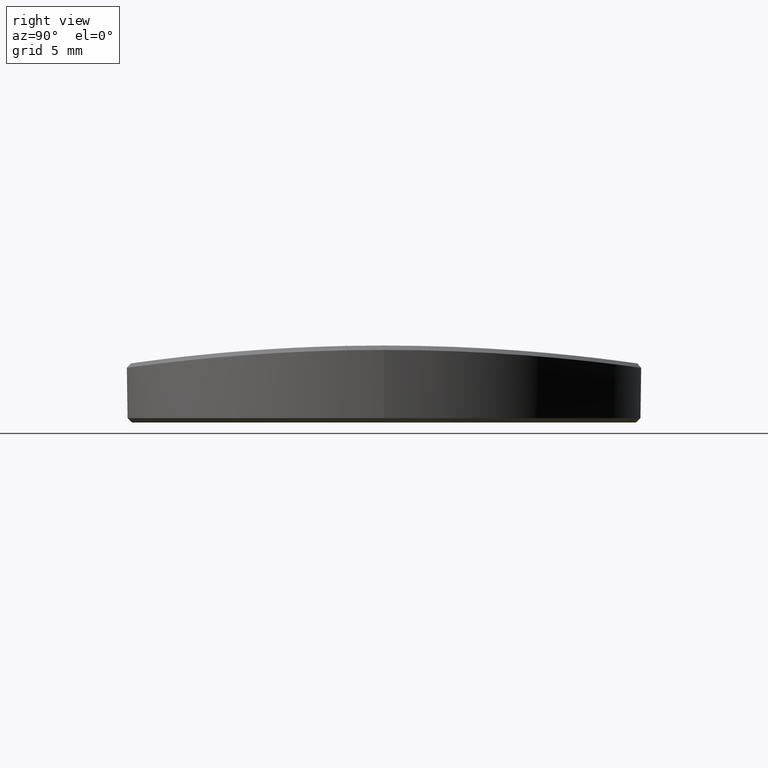
[diagram: clean part render]
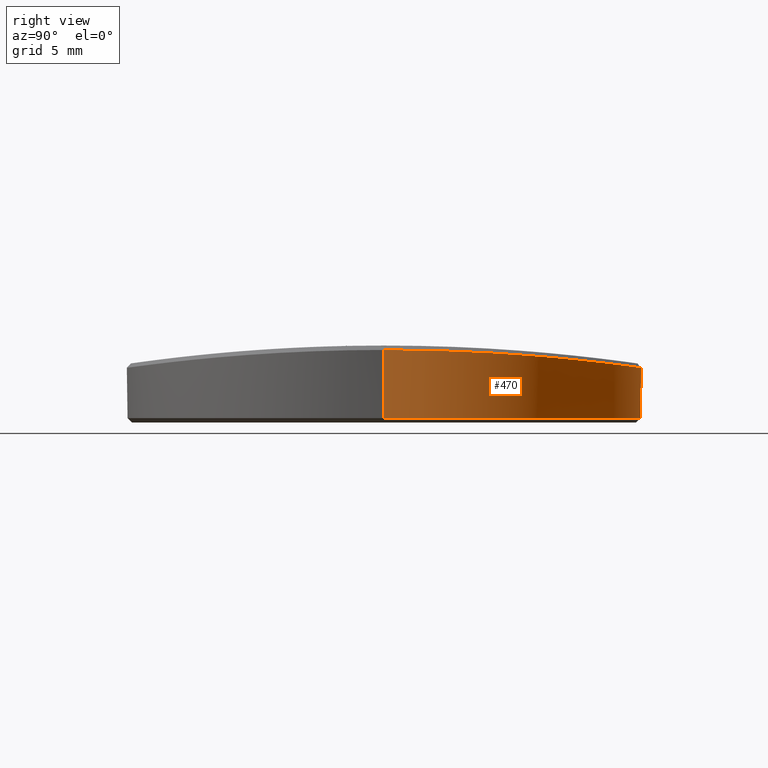
[diagram: same view with one face highlighted and labeled with its STEP entity id]
A machine part, right view. The second image highlights one B-rep face of the part: STEP entity #470.
In plain terms, the highlighted cylindrical surface (partial cylindrical patch) has radius 11.7 mm, axis along (-0, -0, -1).
Its self-contained STEP definition (entity closure, byte-faithful):
#8 = CARTESIAN_POINT ( 'NONE',  ( 9.423466550783288653, 6.934582250744128373, 3.014997046267250624 ) ) ;
#12 = CARTESIAN_POINT ( 'NONE',  ( -6.934881590996047507, 9.423246402945569145, 2.773191987632987132 ) ) ;
#29 = CARTESIAN_POINT ( 'NONE',  ( 11.28808333336720970, 3.079837177515823754, 3.243718037676820209 ) ) ;
#32 = CARTESIAN_POINT ( 'NONE',  ( -8.120234267055250754, 8.423625073570237376, 2.879266567109408204 ) ) ;
#46 = CARTESIAN_POINT ( 'NONE',  ( -7.790204086379394433, 8.729484045747740950, 2.848076022502154636 ) ) ;
#59 = CARTESIAN_POINT ( 'NONE',  ( -3.582919657623313103, 11.13944111959476935, 2.563011619880523284 ) ) ;
#72 = CARTESIAN_POINT ( 'NONE',  ( -5.496578909101371480, 10.32851043646403078, 2.666757156664107065 ) ) ;
#85 = CARTESIAN_POINT ( 'NONE',  ( -1.337711749418160956, 11.62482199064237776, 2.497069820087239211 ) ) ;
#100 = CARTESIAN_POINT ( 'NONE',  ( -6.431031885545754889, 9.774096074572968362, 2.733117620759950128 ) ) ;
#128 = CARTESIAN_POINT ( 'NONE',  ( 8.355403552951450763, 8.190122313584293323, 2.902292401856165771 ) ) ;
#131 = CARTESIAN_POINT ( 'NONE',  ( -10.67904687984067280, 4.781552069969376539, 3.164543701788722796 ) ) ;
#141 = CARTESIAN_POINT ( 'NONE',  ( 5.557007384699456765, 10.29610583020572356, 2.670737566699660892 ) ) ;
#146 = VECTOR ( 'NONE', #1243, 1000.000000000000000 ) ;
#153 = CARTESIAN_POINT ( 'NONE',  ( 5.796661032644483846, 10.16383934591849325, 2.686879312257353991 ) ) ;
#155 = CARTESIAN_POINT ( 'NONE',  ( -11.16868290659732743, 3.486079054597477800, 3.227864790186482313 ) ) ;
#165 = CARTESIAN_POINT ( 'NONE',  ( 7.475799714176662114, 9.000180611077421844, 2.819546441067651177 ) ) ;
#167 = CARTESIAN_POINT ( 'NONE',  ( -10.74414991198151803, 4.632169281395521310, 3.172812873765554986 ) ) ;
#179 = CARTESIAN_POINT ( 'NONE',  ( 6.768288103610924367, 9.544423485426866804, 2.759549672480526628 ) ) ;
#189 = CARTESIAN_POINT ( 'NONE',  ( 10.47289090876417994, 5.217801390915133730, 3.138718563851202514 ) ) ;
#190 = CARTESIAN_POINT ( 'NONE',  ( -7.848453221490137466, 8.677084356806657794, 2.853493259761380241 ) ) ;
#200 = CARTESIAN_POINT ( 'NONE',  ( 9.058353588421136138, 7.405159564314372389, 2.974965108759346943 ) ) ;
#204 = CARTESIAN_POINT ( 'NONE',  ( -7.841116831944908938, 8.683718255666667218, 2.852809013293279961 ) ) ;
#213 = CARTESIAN_POINT ( 'NONE',  ( 8.676743474769089914, 7.848832130868982127, 2.934795349039413193 ) ) ;
#216 = CARTESIAN_POINT ( 'NONE',  ( -8.661088741182386030, 7.866101081746550427, 2.933184051447837781 ) ) ;
#226 = CARTESIAN_POINT ( 'NONE',  ( 8.988207846977292803, 7.490621123748704591, 2.967436274016963971 ) ) ;
#229 = CARTESIAN_POINT ( 'NONE',  ( -8.656823624091387614, 7.870796423134953201, 2.932745429501128598 ) ) ;
#237 = CARTESIAN_POINT ( 'NONE',  ( 10.62198045870282748, 4.912097306269226138, 3.157288707685147688 ) ) ;
#241 = CARTESIAN_POINT ( 'NONE',  ( -8.838308855851572332, 7.667471396299688102, 2.951553142311600819 ) ) ;
#254 = CARTESIAN_POINT ( 'NONE',  ( -3.311605327344831817, 11.22158043972328834, 2.552039130861377014 ) ) ;
#283 = CARTESIAN_POINT ( 'NONE',  ( -4.324336184270618944, 10.87171867893543897, 2.598135972374700842 ) ) ;
#299 = CARTESIAN_POINT ( 'NONE',  ( 2.468828876874232137, 11.43665596899067971, 2.522966208314358472 ) ) ;
#315 = CARTESIAN_POINT ( 'NONE',  ( -6.085178776723663141, 9.993489790850242471, 2.707319686708413720 ) ) ;
#321 = VERTEX_POINT ( 'NONE', #1889 ) ;
#324 = CARTESIAN_POINT ( 'NONE',  ( 8.095396090477708029, 8.447710135712037882, 2.876863130047841999 ) ) ;
#327 = CARTESIAN_POINT ( 'NONE',  ( -11.69999999999999929, 0.000000000000000000, 3.299711432255976185 ) ) ;
#338 = CARTESIAN_POINT ( 'NONE',  ( 4.623643885365336104, 10.74782390521994380, 2.614102858593107648 ) ) ;
#351 = CARTESIAN_POINT ( 'NONE',  ( 6.976823608922873454, 9.392235483002231433, 2.776662898541364832 ) ) ;
#353 = CARTESIAN_POINT ( 'NONE',  ( -10.62007743323034070, 4.910505967701833008, 3.157111466462679150 ) ) ;
#363 = CARTESIAN_POINT ( 'NONE',  ( 7.450724081023547107, 9.020910510720485220, 2.817323503001227802 ) ) ;
#365 = DIRECTION ( 'NONE',  ( -1.000000000000000000, 0.000000000000000000, 0.000000000000000000 ) ) ;
#374 = CARTESIAN_POINT ( 'NONE',  ( 5.528467339751951037, 10.31145991549457186, 2.668852876344127267 ) ) ;
#376 = CARTESIAN_POINT ( 'NONE',  ( -11.25268642968377009, 3.210127015008774176, 3.238988517216529139 ) ) ;
#377 = LINE ( 'NONE', #1144, #1668 ) ;
#386 = CARTESIAN_POINT ( 'NONE',  ( 10.39432843700371834, 5.371427792267426504, 3.129025969215451397 ) ) ;
#388 = CARTESIAN_POINT ( 'NONE',  ( -7.491168183058967145, 8.987742304217336553, 2.820891582836016820 ) ) ;
#401 = CARTESIAN_POINT ( 'NONE',  ( 10.81611117540400535, 4.461196338489997082, 3.182000176748348341 ) ) ;
#402 = CARTESIAN_POINT ( 'NONE',  ( -9.015223535563711366, 7.457604350042461583, 2.970339419094927713 ) ) ;
#410 = CARTESIAN_POINT ( 'NONE',  ( 10.84436250118830181, 4.392083582961825883, 3.185621824939246061 ) ) ;
#413 = CARTESIAN_POINT ( 'NONE',  ( -9.029058120947217603, 7.440848573013114198, 2.971820874427476777 ) ) ;
#422 = CARTESIAN_POINT ( 'NONE',  ( 11.20722010062317864, 3.360115683973921907, 3.232965936025506082 ) ) ;
#424 = CARTESIAN_POINT ( 'NONE',  ( -8.625495655252160887, 7.905150689315621371, 2.929528927607870870 ) ) ;
#433 = CARTESIAN_POINT ( 'NONE',  ( 11.50932266270777404, 2.104243587441659624, 3.273550169094619378 ) ) ;
#435 = CARTESIAN_POINT ( 'NONE',  ( -8.994283184727965619, 7.482894975307424090, 2.968099537626058826 ) ) ;
#437 = LINE ( 'NONE', #2058, #146 ) ;
#447 = CARTESIAN_POINT ( 'NONE',  ( -4.392152916655184924, 10.84433442219547139, 2.601677737078109232 ) ) ;
#456 = ORIENTED_EDGE ( 'NONE', *, *, #2287, .T. ) ;
#463 = CARTESIAN_POINT ( 'NONE',  ( -2.095613579457322739, 11.51119752531552365, 2.512759529599827957 ) ) ;
#470 = ADVANCED_FACE ( 'NONE', ( #1912 ), #988, .T. ) ;
#478 = CARTESIAN_POINT ( 'NONE',  ( 1.522781634743607837, 11.60207571883033495, 2.500227536869347400 ) ) ;
#487 = VERTEX_POINT ( 'NONE', #778 ) ;
#492 = CARTESIAN_POINT ( 'NONE',  ( -5.211233301710781696, 10.47614687420152180, 2.648481863732226049 ) ) ;
#506 = CARTESIAN_POINT ( 'NONE',  ( 1.334777704807919241, 11.62520664857412811, 2.497016128364430987 ) ) ;
#517 = CARTESIAN_POINT ( 'NONE',  ( 7.990451248843819521, 8.546636761880874289, 2.866854406976475200 ) ) ;
#533 = CARTESIAN_POINT ( 'NONE',  ( 4.516641084779545956, 10.79307609056330541, 2.608288902651102692 ) ) ;
#534 = CARTESIAN_POINT ( 'NONE',  ( -10.09257721807098385, 5.919372284315842947, 3.092391209321452283 ) ) ;
#543 = CARTESIAN_POINT ( 'NONE',  ( 7.659438855010386682, 8.845264139293899319, 2.836020008356208599 ) ) ;
#545 = CARTESIAN_POINT ( 'NONE',  ( -11.39562051646670504, 2.653077861295151774, 3.258148116783672776 ) ) ;
#556 = CARTESIAN_POINT ( 'NONE',  ( 4.292606044357717643, 10.88586470433403086, 2.596331278904784767 ) ) ;
#571 = CARTESIAN_POINT ( 'NONE',  ( 4.559406541687865300, 10.77508005413518433, 2.610602714872159780 ) ) ;
#572 = CARTESIAN_POINT ( 'NONE',  ( -10.30619530600928435, 5.538272715550768055, 3.118225804023168291 ) ) ;
#582 = CARTESIAN_POINT ( 'NONE',  ( 9.152262765054185678, 7.289055387227012517, 2.985102498484895506 ) ) ;
#585 = CARTESIAN_POINT ( 'NONE',  ( 0.000000000000000000, 0.000000000000000000, 0.2000000000000005107 ) ) ;
#594 = CARTESIAN_POINT ( 'NONE',  ( 8.568059341121223582, 7.967910334247390480, 2.923639158911551128 ) ) ;
#597 = CARTESIAN_POINT ( 'NONE',  ( -9.301898221341586392, 7.097074807426446696, 3.001486397761464975 ) ) ;
#598 = DIRECTION ( 'NONE',  ( -0.000000000000000000, -0.000000000000000000, -1.000000000000000000 ) ) ;
#609 = CARTESIAN_POINT ( 'NONE',  ( 10.13712715543801934, 5.845097038816791546, 3.097688791261012931 ) ) ;
#611 = CARTESIAN_POINT ( 'NONE',  ( -9.350632590962717927, 7.032537705108548032, 3.006884969986363565 ) ) ;
#617 = EDGE_CURVE ( 'NONE', #699, #2062, #1368, .T. ) ;
#621 = CARTESIAN_POINT ( 'NONE',  ( 10.33653362354998784, 5.481443991762954049, 3.121935311930414958 ) ) ;
#624 = CARTESIAN_POINT ( 'NONE',  ( -9.390733326201626596, 6.978845470846147592, 3.011344437636261251 ) ) ;
#634 = CARTESIAN_POINT ( 'NONE',  ( 9.097931221171149829, 7.356543930396582276, 2.979226690039008307 ) ) ;
#636 = CARTESIAN_POINT ( 'NONE',  ( -7.902703086800633159, 8.627913454535017124, 2.858559595217585958 ) ) ;
#651 = CARTESIAN_POINT ( 'NONE',  ( -6.483980407801703372, 9.739001993762412823, 2.737191061364371514 ) ) ;
#664 = CARTESIAN_POINT ( 'NONE',  ( -1.905942181021414550, 11.54411751256195551, 2.508230856890888205 ) ) ;
#678 = CARTESIAN_POINT ( 'NONE',  ( -6.462791321553200241, 9.753075930050032483, 2.735558521297457357 ) ) ;
#690 = CARTESIAN_POINT ( 'NONE',  ( 2.332414130234035987, 11.46526084095253673, 2.519056454871011042 ) ) ;
#699 = VERTEX_POINT ( 'NONE', #1765 ) ;
#704 = CARTESIAN_POINT ( 'NONE',  ( -3.241333030234592183, 11.24223849589566626, 2.549272996521533052 ) ) ;
#718 = CARTESIAN_POINT ( 'NONE',  ( 7.872816842942847337, 8.654991073365442489, 2.855769335695639732 ) ) ;
#729 = CARTESIAN_POINT ( 'NONE',  ( 8.415406934443256048, 8.128737930169325665, 2.908254438342697146 ) ) ;
#732 = CARTESIAN_POINT ( 'NONE',  ( -10.27946836599072178, 5.587792109919258898, 3.114965400873385803 ) ) ;
#740 = CARTESIAN_POINT ( 'NONE',  ( 6.984746633281731398, 9.386343287034723204, 2.777321023013490819 ) ) ;
#753 = CARTESIAN_POINT ( 'NONE',  ( 6.886793523281692586, 9.458963865658404302, 2.769200854409201717 ) ) ;
#755 = CARTESIAN_POINT ( 'NONE',  ( -11.54471327953443094, 1.909544352753712593, 3.278370241907229587 ) ) ;
#766 = CARTESIAN_POINT ( 'NONE',  ( 3.707257853750436372, 11.09782613653675298, 2.568523704718085554 ) ) ;
#768 = CARTESIAN_POINT ( 'NONE',  ( -9.945924353340862112, 6.164813162605133456, 3.074934426782229835 ) ) ;
#776 = CARTESIAN_POINT ( 'NONE',  ( 11.48194064351578980, 2.248830102329018032, 3.269828505088925308 ) ) ;
#778 = CARTESIAN_POINT ( 'NONE',  ( -11.69999999999999929, 0.000000000000000000, 3.299711432255976185 ) ) ;
#788 = CARTESIAN_POINT ( 'NONE',  ( 11.53514529553438095, 1.961326025461358036, 3.277065188490067005 ) ) ;
#790 = CARTESIAN_POINT ( 'NONE',  ( -7.289835265890022953, 9.151643139138085914, 2.803207641033847342 ) ) ;
#801 = CARTESIAN_POINT ( 'NONE',  ( 9.049142079938038208, 7.416410280391377619, 2.973975458292172469 ) ) ;
#805 = CARTESIAN_POINT ( 'NONE',  ( -6.904828587154198338, 9.445338527637316517, 2.770714275430151918 ) ) ;
#816 = CARTESIAN_POINT ( 'NONE',  ( 9.729402635867925753, 6.498373141927663355, 3.049742821307174889 ) ) ;
#828 = CARTESIAN_POINT ( 'NONE',  ( 8.901032028122946471, 7.594591198013921129, 2.958156101019311368 ) ) ;
#841 = CARTESIAN_POINT ( 'NONE',  ( -7.723515326215519394, 8.788729706879577108, 2.841916660075511469 ) ) ;
#880 = CARTESIAN_POINT ( 'NONE',  ( -2.192617448844272232, 11.49310091797883082, 2.515243767963540655 ) ) ;
#917 = CARTESIAN_POINT ( 'NONE',  ( 6.510411879705085170, 9.721352678930301749, 2.739235052362154921 ) ) ;
#918 = CARTESIAN_POINT ( 'NONE',  ( -10.41038856129049250, 5.343518792309530419, 3.130959854182742585 ) ) ;
#927 = CARTESIAN_POINT ( 'NONE',  ( 3.209129434497355771, 11.25296467481989637, 2.547850641688944151 ) ) ;
#930 = CARTESIAN_POINT ( 'NONE',  ( -11.58699169551787023, 1.625058316937553204, 3.284155005439008956 ) ) ;
#940 = CARTESIAN_POINT ( 'NONE',  ( 4.496616074069401670, 10.80143720579584610, 2.607212632607281755 ) ) ;
#942 = CARTESIAN_POINT ( 'NONE',  ( -10.77127391442315840, 4.568390226770352669, 3.176270711204864927 ) ) ;
#954 = CARTESIAN_POINT ( 'NONE',  ( -10.31093515468835164, 5.529445729543909671, 3.118804645321553881 ) ) ;
#962 = CARTESIAN_POINT ( 'NONE',  ( 7.858066330367867280, 8.668379162579208597, 2.854390595276656395 ) ) ;
#973 = CARTESIAN_POINT ( 'NONE',  ( 11.13960346339148266, 3.582428139459750582, 3.224011473613464407 ) ) ;
#975 = CARTESIAN_POINT ( 'NONE',  ( -9.371135975509274019, 7.005136655314948335, 3.009163585647002925 ) ) ;
#976 = CARTESIAN_POINT ( 'NONE',  ( 0.000000000000000000, 0.000000000000000000, 7.000000000000000000 ) ) ;
#985 = CARTESIAN_POINT ( 'NONE',  ( 9.074239281633557752, 7.385684759416496270, 2.976674299523931921 ) ) ;
#987 = CARTESIAN_POINT ( 'NONE',  ( -6.966119983707230290, 9.400175325088783396, 2.775775206985620081 ) ) ;
#988 = CYLINDRICAL_SURFACE ( 'NONE', #1672, 11.69999999999999929 ) ;
#995 = CARTESIAN_POINT ( 'NONE',  ( 9.989931619280707054, 6.091009180076113694, 3.080175552973254849 ) ) ;
#999 = CARTESIAN_POINT ( 'NONE',  ( -9.721944960466151642, 6.509527303165087986, 3.048882770949223886 ) ) ;
#1005 = CARTESIAN_POINT ( 'NONE',  ( 9.751083966528078406, 6.465796214908926309, 3.052246573459246104 ) ) ;
#1008 = CARTESIAN_POINT ( 'NONE',  ( -8.646661791318692281, 7.881965018422438796, 2.931701099968383240 ) ) ;
#1014 = CARTESIAN_POINT ( 'NONE',  ( -11.69999999999999929, 0.000000000000000000, 0.2000000000000005107 ) ) ;
#1017 = CARTESIAN_POINT ( 'NONE',  ( -7.856819018890263351, 8.669509699315774753, 2.854274081208691971 ) ) ;
#1029 = CARTESIAN_POINT ( 'NONE',  ( -3.851115946765835130, 11.05092222841852667, 2.574756536014163544 ) ) ;
#1035 = B_SPLINE_CURVE_WITH_KNOTS ( 'NONE', 3,
 ( #327, #2113, #2125, #1095, #2514, #1108, #930, #755, #1129, #1922, #2475, #545, #1714, #376, #1510, #155, #1119, #1310, #1143, #2528, #2337, #1890, #942, #167, #131, #353, #1911, #918, #954, #572, #1727, #732, #1499, #2288, #534, #768, #1537, #999, #2002, #2360, #1577, #2154, #1362, #1787, #624, #1391, #975, #611, #597, #1405, #1777, #1977, #413, #402, #435, #1209, #241, #1963, #2179, #2190, #216, #229, #1008, #424, #1614, #1799, #1197, #1991, #2393, #2541, #1185, #32, #1172, #1601, #636, #1017, #1811, #190, #204, #1351, #46, #841, #2140, #388, #1159, #1950, #1764, #1379, #790, #2165, #1563, #987, #2348, #12, #805, #2067, #1276, #1223, #1264, #651, #678, #100, #2014, #1416, #315, #1691, #1874, #72, #2202, #1825, #1675, #492, #1045, #1850, #1083, #1861, #447, #283, #1456, #1029, #59, #1647, #2256, #254, #704, #1630, #1661, #2407, #880, #463, #664, #2054, #85, #2423, #1429, #2449, #1443, #2228, #1471, #506, #478, #1252, #1059, #690, #2242, #299, #1117, #1725, #927, #1336, #1909, #1127, #766, #1322, #556, #940, #533, #571, #338, #2285, #2122, #1713, #2100, #374, #2483, #141, #1141, #1298, #153, #1106, #1703, #1933, #917, #2496, #2088, #2078, #2309, #179, #753, #351, #740, #1536, #1507, #1521, #2512, #1308, #2111, #1921, #363, #165, #2297, #543, #1286, #1740, #2473, #962, #2461, #718, #1486, #2269, #517, #324, #1093, #1497, #1887, #128, #729, #1785, #594, #1170, #2376, #213, #1157, #1959, #1548, #1361, #828, #226, #801, #200, #985, #634, #582, #2365, #1751, #1774, #1575, #8, #2152, #1206, #1375, #1182, #816, #1948, #1005, #1402, #1387, #2357, #995, #609, #1585, #2187, #2162, #621, #2138, #386, #189, #237, #1562, #401, #1195, #410, #1974, #1795, #2176, #973, #422, #1762, #1988, #29, #2345, #1597, #776, #2539, #433, #788, #1999, #2526, #1349, #1821, #1235, #2210, #1440, #1644 ),
 .UNSPECIFIED., .F., .F.,
 ( 4, 2, 2, 2, 2, 2, 1, 2, 2, 1, 1, 2, 2, 1, 1, 2, 2, 2, 1, 1, 1, 2, 2, 2, 1, 1, 1, 2, 2, 1, 1, 1, 2, 2, 1, 1, 1, 2, 2, 1, 1, 1, 1, 2, 2, 2, 1, 2, 2, 2, 1, 1, 1, 1, 1, 2, 2, 1, 1, 1, 2, 2, 1, 1, 1, 2, 2, 1, 1, 1, 2, 2, 2, 1, 1, 1, 2, 2, 1, 1, 1, 2, 2, 1, 1, 1, 2, 2, 1, 2, 2, 2, 2, 2, 2, 2, 1, 1, 2, 2, 1, 1, 2, 2, 1, 1, 2, 2, 2, 1, 1, 1, 2, 2, 2, 1, 1, 1, 2, 2, 1, 1, 1, 2, 2, 1, 1, 1, 2, 2, 1, 1, 1, 1, 2, 2, 2, 1, 2, 2, 2, 1, 1, 1, 1, 2, 2, 1, 1, 1, 2, 2, 1, 1, 1, 2, 2, 1, 1, 1, 2, 2, 2, 1, 1, 1, 1, 2, 2, 1, 1, 1, 2, 2, 1, 1, 2, 2, 1, 1, 2, 2, 1, 4 ),
 ( 0.000000000000000000, 0.01562479073492670407, 0.01953098841865838486, 0.02343718610239006392, 0.03124958146985344284, 0.03515577915358512884, 0.03906197683731681136, 0.04687437220478015559, 0.04882747104664596910, 0.05078056988851178261, 0.05468676757224342350, 0.06249916293970670528, 0.06347571236063961897, 0.06445226178157249797, 0.06640536062343828372, 0.07031155830716986910, 0.07812395367463302598, 0.07861222838509944466, 0.07910050309556587722, 0.08007705251649867295, 0.08203015135836426441, 0.08593634904209546121, 0.09374874440955785482, 0.09423701912002427350, 0.09472529383049066443, 0.09570184325142347403, 0.09765494209328899611, 0.1015611397770199709, 0.1020494144874863340, 0.1025376891979526833, 0.1035142386188852986, 0.1054673374607505015, 0.1093735351444808934, 0.1098618098549471733, 0.1103500845654134532, 0.1113266339863459714, 0.1132797328282109245, 0.1171859305119408168, 0.1173079991895573382, 0.1174300678671738457, 0.1176742052224069440, 0.1181624799328732378, 0.1191390293538057976, 0.1210921281956707785, 0.1249983258794007263, 0.1259748753003332167, 0.1269514247212657487, 0.1289045235631307573, 0.1328107212468607745, 0.1329327899244773514, 0.1330548586020939561, 0.1332989959573270544, 0.1337872706677933066, 0.1347638200887257831, 0.1367169189305907362, 0.1406231166143207534, 0.1411113913247870055, 0.1415996660352532577, 0.1425762154561858730, 0.1445293142980510204, 0.1484355119817813429, 0.1489237866922476505, 0.1494120614027139304, 0.1503886108236465180, 0.1523417096655116376, 0.1562479073492417936, 0.1567361820597080457, 0.1572244567701742979, 0.1582010061911069132, 0.1601541050329721994, 0.1640603027167027717, 0.1718726980841639718, 0.1728492475050965871, 0.1738257969260291746, 0.1757788957678944330, 0.1796850934516249776, 0.1874974888190860112, 0.1884740382400186820, 0.1894505876609512973, 0.1914036865028165835, 0.1953098841865470725, 0.2031222795540080506, 0.2040988289749406936, 0.2050753783958733090, 0.2070284772377385396, 0.2109346749214690009, 0.2187470702889299790, 0.2226532679726604680, 0.2265594656563909293, 0.2343718610238519073, 0.2421842563913128576, 0.2499966517587738080, 0.2656214424936957363, 0.2734338378611566589, 0.2812462332286176925, 0.2831993320704828676, 0.2851524309123481538, 0.2890586285960785595, 0.2968710239635394821, 0.2988241228054047127, 0.3007772216472699434, 0.3046834193310003491, 0.3124958146984611607, 0.3134723641193937205, 0.3144489135403262803, 0.3164020123821914554, 0.3203082100659218057, 0.3281206054333824507, 0.3286088801438487583, 0.3290971548543150660, 0.3300737042752477368, 0.3320268031171131340, 0.3359330008008439283, 0.3437453961683054615, 0.3442336708787717137, 0.3447219455892380213, 0.3456984950101706922, 0.3476515938520359783, 0.3515577915357667171, 0.3520460662462330803, 0.3525343409566994435, 0.3535108903776321698, 0.3554639892194977890, 0.3593701869032289720, 0.3598584616136953351, 0.3603467363241617538, 0.3613232857450945912, 0.3632763845869603769, 0.3671825822706919484, 0.3673046509483085531, 0.3674267196259251578, 0.3676708569811582561, 0.3681591316916243417, 0.3691356811125566795, 0.3710887799544214105, 0.3749949776381507061, 0.3759715270590830993, 0.3769480764800153816, 0.3789011753218799461, 0.3828073730056092971, 0.3830515103608423955, 0.3832956477160755493, 0.3837839224265417459, 0.3847604718474741392, 0.3867135706893390368, 0.3906197683730687209, 0.3911080430835349175, 0.3915963177940011142, 0.3925728672149335075, 0.3945259660567982940, 0.3984321637405279781, 0.3989204384509941748, 0.3994087131614604269, 0.4003852625823929312, 0.4023383614242578843, 0.4062445591079877349, 0.4067328338184540426, 0.4072211085289202948, 0.4081976579498527435, 0.4101507567917176966, 0.4140569544754475473, 0.4218693498429071931, 0.4223576245533735007, 0.4228458992638397529, 0.4238224486847723682, 0.4257755475266373768, 0.4296817452103675050, 0.4374941405778277059, 0.4384706899987601547, 0.4394472394196926590, 0.4414003382615576676, 0.4453065359452876293, 0.4531189313127474971, 0.4550720301546125057, 0.4570251289964774033, 0.4609313266802074205, 0.4687437220476672883, 0.4706968208895322414, 0.4726499197313973055, 0.4765561174151273227, 0.4843685127825872461, 0.4882747104663173188, 0.4921809081500473360, 0.4999933035175072038 ),
 .UNSPECIFIED. ) ;
#1045 = CARTESIAN_POINT ( 'NONE',  ( -4.908136952123707708, 10.62375649022187751, 2.629977401820009497 ) ) ;
#1059 = CARTESIAN_POINT ( 'NONE',  ( 2.094099137748764772, 11.51271201833877633, 2.512558171287100350 ) ) ;
#1083 = CARTESIAN_POINT ( 'NONE',  ( -4.461490773530651488, 10.81598925202011152, 2.605337394845803622 ) ) ;
#1093 = CARTESIAN_POINT ( 'NONE',  ( 8.177388900691255458, 8.368844916907779208, 2.884763734448873240 ) ) ;
#1095 = CARTESIAN_POINT ( 'NONE',  ( -11.63371268733815356, 1.247407887957102668, 3.290568764739416174 ) ) ;
#1106 = CARTESIAN_POINT ( 'NONE',  ( 5.918609686938541614, 10.09302619205728213, 2.695415383594859993 ) ) ;
#1108 = CARTESIAN_POINT ( 'NONE',  ( -11.59988950571678501, 1.530254236989679439, 3.285923141830183525 ) ) ;
#1117 = CARTESIAN_POINT ( 'NONE',  ( 2.607119103802808979, 11.40651398577037767, 2.527079387571366187 ) ) ;
#1119 = CARTESIAN_POINT ( 'NONE',  ( -11.14021095743726697, 3.576020814650999302, 3.224106741617855043 ) ) ;
#1127 = CARTESIAN_POINT ( 'NONE',  ( 3.573226010276571163, 11.14110608196403795, 2.562774473780251583 ) ) ;
#1128 = EDGE_CURVE ( 'NONE', #487, #2062, #377, .T. ) ;
#1129 = CARTESIAN_POINT ( 'NONE',  ( -11.51243931401960019, 2.095362803988082057, 3.273967039694162029 ) ) ;
#1141 = CARTESIAN_POINT ( 'NONE',  ( 5.586735230195748692, 10.28004280698166362, 2.672707396807451730 ) ) ;
#1143 = CARTESIAN_POINT ( 'NONE',  ( -10.98781904766110706, 4.027713279896210530, 3.204111962961976978 ) ) ;
#1144 = CARTESIAN_POINT ( 'NONE',  ( -11.69999999999999929, 0.000000000000000000, 7.000000000000000000 ) ) ;
#1157 = CARTESIAN_POINT ( 'NONE',  ( 8.685550864554013373, 7.839084724937871229, 2.935703165481990951 ) ) ;
#1159 = CARTESIAN_POINT ( 'NONE',  ( -7.417850885889724744, 9.047961061317048248, 2.814417395185286885 ) ) ;
#1170 = CARTESIAN_POINT ( 'NONE',  ( 8.623155022304887396, 7.907948699654562930, 2.929279566532910550 ) ) ;
#1172 = CARTESIAN_POINT ( 'NONE',  ( -8.063802963893706988, 8.477461151268876449, 2.873851603192834059 ) ) ;
#1182 = CARTESIAN_POINT ( 'NONE',  ( 9.672513847866587966, 6.583368513664884958, 3.043184281608088515 ) ) ;
#1185 = CARTESIAN_POINT ( 'NONE',  ( -8.183130141448463846, 8.362254758437961399, 2.885370998962653921 ) ) ;
#1195 = CARTESIAN_POINT ( 'NONE',  ( 10.82593519964983741, 4.437310368892917189, 3.183258506039083446 ) ) ;
#1197 = CARTESIAN_POINT ( 'NONE',  ( -8.436339504350710783, 8.107236340137314201, 2.910338825765944826 ) ) ;
#1203 = AXIS2_PLACEMENT_3D ( 'NONE', #585, #1352, #1729 ) ;
#1206 = CARTESIAN_POINT ( 'NONE',  ( 9.495746372935791157, 6.835565486570026827, 3.023098851499518958 ) ) ;
#1209 = CARTESIAN_POINT ( 'NONE',  ( -8.944092696470155701, 7.542995394681379473, 2.962749258241688555 ) ) ;
#1223 = CARTESIAN_POINT ( 'NONE',  ( -6.581120219830313367, 9.674047974740721756, 2.744710309009596561 ) ) ;
#1235 = CARTESIAN_POINT ( 'NONE',  ( 11.67511951402372006, 0.7686864931588361927, 3.296272369256413537 ) ) ;
#1243 = DIRECTION ( 'NONE',  ( -0.000000000000000000, -0.000000000000000000, -1.000000000000000000 ) ) ;
#1252 = CARTESIAN_POINT ( 'NONE',  ( 1.903471068608918237, 11.54572746878920420, 2.508012593656696598 ) ) ;
#1264 = CARTESIAN_POINT ( 'NONE',  ( -6.495686494617649132, 9.731196606499731061, 2.738095409239615918 ) ) ;
#1271 = ORIENTED_EDGE ( 'NONE', *, *, #1973, .T. ) ;
#1276 = CARTESIAN_POINT ( 'NONE',  ( -6.696926464447727767, 9.594652153937847316, 2.753831136045806538 ) ) ;
#1286 = CARTESIAN_POINT ( 'NONE',  ( 7.773273832125242144, 8.745144773291521290, 2.846476904890915094 ) ) ;
#1298 = CARTESIAN_POINT ( 'NONE',  ( 5.656365097422834332, 10.24202865775296800, 2.677358396301158461 ) ) ;
#1308 = CARTESIAN_POINT ( 'NONE',  ( 7.339054675528768890, 9.112551862464082220, 2.807467590457340734 ) ) ;
#1310 = CARTESIAN_POINT ( 'NONE',  ( -11.09654133256946551, 3.711135828045569074, 3.218353100783033494 ) ) ;
#1322 = CARTESIAN_POINT ( 'NONE',  ( 4.021375021019328422, 10.99009448205978501, 2.582748964140738845 ) ) ;
#1336 = CARTESIAN_POINT ( 'NONE',  ( 3.441472192086372228, 11.18251434192474214, 2.557260420809538193 ) ) ;
#1349 = CARTESIAN_POINT ( 'NONE',  ( 11.65242099385223895, 1.058377571255532557, 3.293143774200750773 ) ) ;
#1351 = CARTESIAN_POINT ( 'NONE',  ( -7.824061494580099030, 8.699101204851467983, 2.851220543127558571 ) ) ;
#1352 = DIRECTION ( 'NONE',  ( -0.000000000000000000, -0.000000000000000000, 1.000000000000000000 ) ) ;
#1361 = CARTESIAN_POINT ( 'NONE',  ( 8.788277459266511826, 7.724030062672505359, 2.946347026418312254 ) ) ;
#1362 = CARTESIAN_POINT ( 'NONE',  ( -9.543738219942001777, 6.769268931010007151, 3.028494888423805431 ) ) ;
#1368 = CIRCLE ( 'NONE', #1203, 11.69999999999999929 ) ;
#1375 = CARTESIAN_POINT ( 'NONE',  ( 9.593564696378839685, 6.698467279425342369, 3.034148871546872073 ) ) ;
#1379 = CARTESIAN_POINT ( 'NONE',  ( -7.357562205806009281, 9.097108243163550156, 2.809117550764718807 ) ) ;
#1387 = CARTESIAN_POINT ( 'NONE',  ( 9.820017844877648727, 6.360945007421232589, 3.060235700017372551 ) ) ;
#1391 = CARTESIAN_POINT ( 'NONE',  ( -9.384720459634728229, 6.986927144720671556, 3.010674872054088791 ) ) ;
#1402 = CARTESIAN_POINT ( 'NONE',  ( 9.771948935284171966, 6.434292633096161396, 3.054659516805163566 ) ) ;
#1405 = CARTESIAN_POINT ( 'NONE',  ( -9.200804370579660940, 7.228503796321450459, 2.990362043911371170 ) ) ;
#1416 = CARTESIAN_POINT ( 'NONE',  ( -6.209958375595539870, 9.916838390925105884, 2.716418885577785325 ) ) ;
#1429 = CARTESIAN_POINT ( 'NONE',  ( -0.7684647079069499842, 11.67628705229587638, 2.489910028354221261 ) ) ;
#1440 = CARTESIAN_POINT ( 'NONE',  ( 11.69999999999999929, 0.1919033867095415180, 3.299711315953656854 ) ) ;
#1443 = CARTESIAN_POINT ( 'NONE',  ( -0.1968553738701303568, 11.69989796065852872, 2.486614636494622221 ) ) ;
#1456 = CARTESIAN_POINT ( 'NONE',  ( -4.166293894820531918, 10.93381877584709727, 2.590073699956741748 ) ) ;
#1471 = CARTESIAN_POINT ( 'NONE',  ( 0.7600030360295871867, 11.68163686982451388, 2.489172511440565838 ) ) ;
#1480 = ORIENTED_EDGE ( 'NONE', *, *, #617, .T. ) ;
#1486 = CARTESIAN_POINT ( 'NONE',  ( 7.894662150120775657, 8.635092959387813849, 2.857815428355798382 ) ) ;
#1497 = CARTESIAN_POINT ( 'NONE',  ( 8.293532480414238961, 8.252781191882474943, 2.896174642891978568 ) ) ;
#1499 = CARTESIAN_POINT ( 'NONE',  ( -10.24145516296515268, 5.657403206199877133, 3.110339891213405039 ) ) ;
#1507 = CARTESIAN_POINT ( 'NONE',  ( 7.029800967718090376, 9.352689052193454700, 2.781074061195936142 ) ) ;
#1510 = CARTESIAN_POINT ( 'NONE',  ( -11.18207612482867930, 3.442897071815578247, 3.229635792614343082 ) ) ;
#1521 = CARTESIAN_POINT ( 'NONE',  ( 7.093585122149410616, 9.304554981261839330, 2.786422052542485428 ) ) ;
#1536 = CARTESIAN_POINT ( 'NONE',  ( 7.002732353488549499, 9.372932594370182002, 2.778817512006242829 ) ) ;
#1537 = CARTESIAN_POINT ( 'NONE',  ( -9.841213419039627652, 6.330983875910612291, 3.062641026206779138 ) ) ;
#1548 = CARTESIAN_POINT ( 'NONE',  ( 8.729048374613986638, 7.790692074986641735, 2.940196937591881277 ) ) ;
#1562 = CARTESIAN_POINT ( 'NONE',  ( 10.73645105632596319, 4.653254494168540312, 3.171808753078433796 ) ) ;
#1563 = CARTESIAN_POINT ( 'NONE',  ( -7.046508394123357277, 9.340483966026555507, 2.782445937975916994 ) ) ;
#1575 = CARTESIAN_POINT ( 'NONE',  ( 9.408791291023801406, 6.954480517480925883, 3.013357911461765237 ) ) ;
#1577 = CARTESIAN_POINT ( 'NONE',  ( -9.684049739450218297, 6.565829379392706500, 3.044521322966964760 ) ) ;
#1585 = CARTESIAN_POINT ( 'NONE',  ( 10.22827693551856321, 5.683711752246965787, 3.108705779184498308 ) ) ;
#1597 = CARTESIAN_POINT ( 'NONE',  ( 11.43596581454127836, 2.478679126958015733, 3.263591094295710704 ) ) ;
#1601 = CARTESIAN_POINT ( 'NONE',  ( -7.959934583073112080, 8.575459444268405562, 2.863940965941904615 ) ) ;
#1614 = CARTESIAN_POINT ( 'NONE',  ( -8.579769439166724965, 7.954893256447223671, 2.924850529706742197 ) ) ;
#1630 = CARTESIAN_POINT ( 'NONE',  ( -3.077457984188951112, 11.28874581590597082, 2.543028480273857195 ) ) ;
#1644 = CARTESIAN_POINT ( 'NONE',  ( 11.70000000000316298, 2.430162907726857680E-14, 3.299711432109020848 ) ) ;
#1647 = CARTESIAN_POINT ( 'NONE',  ( -3.383117576830970474, 11.20022561941798500, 2.554894973546010029 ) ) ;
#1661 = CARTESIAN_POINT ( 'NONE',  ( -2.750181937377716324, 11.37504058463171930, 2.531378636626337553 ) ) ;
#1668 = VECTOR ( 'NONE', #1935, 1000.000000000000000 ) ;
#1672 = AXIS2_PLACEMENT_3D ( 'NONE', #976, #598, #365 ) ;
#1675 = CARTESIAN_POINT ( 'NONE',  ( -5.363603122967850467, 10.39836474533050570, 2.658138109526462234 ) ) ;
#1691 = CARTESIAN_POINT ( 'NONE',  ( -5.837663761839751331, 10.14143173234270989, 2.689627500993027276 ) ) ;
#1703 = CARTESIAN_POINT ( 'NONE',  ( 6.164534438722210297, 9.946104187736821700, 2.712987907912795649 ) ) ;
#1713 = CARTESIAN_POINT ( 'NONE',  ( 5.165210413266747125, 10.49988761363244016, 2.645536477915281015 ) ) ;
#1714 = CARTESIAN_POINT ( 'NONE',  ( -11.32972656039057568, 2.931071463177223890, 3.249272661173981724 ) ) ;
#1725 = CARTESIAN_POINT ( 'NONE',  ( 2.930653081744063471, 11.32982150785585773, 2.537502099492137120 ) ) ;
#1727 = CARTESIAN_POINT ( 'NONE',  ( -10.29553439735724929, 5.558066015284052419, 3.116924715633016874 ) ) ;
#1729 = DIRECTION ( 'NONE',  ( 1.000000000000000000, 0.000000000000000000, 0.000000000000000000 ) ) ;
#1740 = CARTESIAN_POINT ( 'NONE',  ( 7.854697025832265922, 8.671432736849267187, 2.854075939995648792 ) ) ;
#1751 = CARTESIAN_POINT ( 'NONE',  ( 9.340864329967168089, 7.046006635630986281, 3.005787366675008787 ) ) ;
#1762 = CARTESIAN_POINT ( 'NONE',  ( 11.22161016789452859, 3.311766831289269408, 3.234874905252887345 ) ) ;
#1764 = CARTESIAN_POINT ( 'NONE',  ( -7.386822820688867530, 9.073312951519209690, 2.811686050927651781 ) ) ;
#1765 = CARTESIAN_POINT ( 'NONE',  ( 11.69999999999999929, 1.432836755002403087E-15, 0.2000000000000005107 ) ) ;
#1774 = CARTESIAN_POINT ( 'NONE',  ( 9.400680508559917214, 6.965438269595633614, 3.012453118253353157 ) ) ;
#1777 = CARTESIAN_POINT ( 'NONE',  ( -9.107756366909052659, 7.345017334001767040, 2.980265953067922968 ) ) ;
#1785 = CARTESIAN_POINT ( 'NONE',  ( 8.469026124690577362, 8.072664088837322893, 2.913639231239057992 ) ) ;
#1787 = CARTESIAN_POINT ( 'NONE',  ( -9.457796664086107086, 6.888403217506695597, 3.018820983945045722 ) ) ;
#1795 = CARTESIAN_POINT ( 'NONE',  ( 10.93385438008143318, 4.166201272029671721, 3.197142665790890792 ) ) ;
#1799 = CARTESIAN_POINT ( 'NONE',  ( -8.534671570574293042, 8.003227943105757802, 2.920267811768456845 ) ) ;
#1811 = CARTESIAN_POINT ( 'NONE',  ( -7.853350119044966604, 8.672652582269980925, 2.853950195971209691 ) ) ;
#1821 = CARTESIAN_POINT ( 'NONE',  ( 11.66086702728079771, 0.9609759432877399421, 3.294307339721131100 ) ) ;
#1825 = CARTESIAN_POINT ( 'NONE',  ( -5.429063639725440815, 10.36416311336866691, 2.662363075189304595 ) ) ;
#1850 = CARTESIAN_POINT ( 'NONE',  ( -4.651684780322516310, 10.73710052666876003, 2.615501628197399064 ) ) ;
#1861 = CARTESIAN_POINT ( 'NONE',  ( -4.437381357924595982, 10.82590610471195447, 2.604058136901652443 ) ) ;
#1874 = CARTESIAN_POINT ( 'NONE',  ( -5.675385146252841295, 10.23291190276088081, 2.678507659880579261 ) ) ;
#1887 = CARTESIAN_POINT ( 'NONE',  ( 8.313954194018943866, 8.232195193500936981, 2.898189434511772244 ) ) ;
#1889 = CARTESIAN_POINT ( 'NONE',  ( 11.70000000000316298, 2.430162907726857680E-14, 3.299711432109020848 ) ) ;
#1890 = CARTESIAN_POINT ( 'NONE',  ( -10.78918545439692700, 4.525926229426794123, 3.178556804295981753 ) ) ;
#1909 = CARTESIAN_POINT ( 'NONE',  ( 3.484012602135714065, 11.16932607806991129, 2.559018832891633899 ) ) ;
#1911 = CARTESIAN_POINT ( 'NONE',  ( -10.49776421603590393, 5.169468120715231763, 3.141787830968440609 ) ) ;
#1912 = FACE_OUTER_BOUND ( 'NONE', #2106, .T. ) ;
#1921 = CARTESIAN_POINT ( 'NONE',  ( 7.434119445055477726, 9.034599263421680959, 2.815853966070192893 ) ) ;
#1922 = CARTESIAN_POINT ( 'NONE',  ( -11.45627522603053272, 2.377595214764110843, 3.266346121583633355 ) ) ;
#1933 = CARTESIAN_POINT ( 'NONE',  ( 6.331193767204034373, 9.841094343570173208, 2.725370099648655842 ) ) ;
#1935 = DIRECTION ( 'NONE',  ( -0.000000000000000000, -0.000000000000000000, -1.000000000000000000 ) ) ;
#1948 = CARTESIAN_POINT ( 'NONE',  ( 9.737115027350776941, 6.486813559765012727, 3.050632799997371247 ) ) ;
#1950 = CARTESIAN_POINT ( 'NONE',  ( -7.406381361262201146, 9.057354714926644235, 2.813406313637794032 ) ) ;
#1959 = CARTESIAN_POINT ( 'NONE',  ( 8.698709606750538725, 7.824496792688266034, 2.937060505297181656 ) ) ;
#1963 = CARTESIAN_POINT ( 'NONE',  ( -8.738080837760332287, 7.781209513488434482, 2.941106944952065927 ) ) ;
#1973 = EDGE_CURVE ( 'NONE', #487, #321, #1035, .T. ) ;
#1974 = CARTESIAN_POINT ( 'NONE',  ( 10.87174649259096348, 4.324266294484773177, 3.189138181968603103 ) ) ;
#1977 = CARTESIAN_POINT ( 'NONE',  ( -9.034586814304494951, 7.434137828018736904, 2.972413419735080886 ) ) ;
#1988 = CARTESIAN_POINT ( 'NONE',  ( 11.24857859388089487, 3.218977154672926666, 3.238458827863607503 ) ) ;
#1991 = CARTESIAN_POINT ( 'NONE',  ( -8.359947724665401481, 8.186378073213624873, 2.902701434929676250 ) ) ;
#1999 = CARTESIAN_POINT ( 'NONE',  ( 11.58898406311675799, 1.627996409688686308, 3.284418225382252032 ) ) ;
#2002 = CARTESIAN_POINT ( 'NONE',  ( -9.716223870765661630, 6.518061514355568242, 3.048223510657844582 ) ) ;
#2014 = CARTESIAN_POINT ( 'NONE',  ( -6.357099721624623001, 9.822510990438733103, 2.727477553112488629 ) ) ;
#2036 = ORIENTED_EDGE ( 'NONE', *, *, #1128, .F. ) ;
#2054 = CARTESIAN_POINT ( 'NONE',  ( -1.621534516045725738, 11.58986372500925910, 2.501922844092112186 ) ) ;
#2058 = CARTESIAN_POINT ( 'NONE',  ( 11.69999999999999929, 1.432836755002403087E-15, 7.000000000000000000 ) ) ;
#2062 = VERTEX_POINT ( 'NONE', #1014 ) ;
#2067 = CARTESIAN_POINT ( 'NONE',  ( -6.835051746836869668, 9.496119660597235779, 2.764998782104801212 ) ) ;
#2078 = CARTESIAN_POINT ( 'NONE',  ( 6.566199394919386201, 9.683798159369205294, 2.743573372988439285 ) ) ;
#2088 = CARTESIAN_POINT ( 'NONE',  ( 6.537727502731899065, 9.703002079627742305, 2.741356277981219058 ) ) ;
#2100 = CARTESIAN_POINT ( 'NONE',  ( 5.340800370929936314, 10.41181879308538250, 2.656518016308793584 ) ) ;
#2106 = EDGE_LOOP ( 'NONE', ( #1271, #456, #1480, #2036 ) ) ;
#2111 = CARTESIAN_POINT ( 'NONE',  ( 7.427458304493456787, 9.040078786314252213, 2.815265203975343855 ) ) ;
#2113 = CARTESIAN_POINT ( 'NONE',  ( -11.69999999999999929, 0.3831894603603715477, 3.299711448140689729 ) ) ;
#2122 = CARTESIAN_POINT ( 'NONE',  ( 4.904114906475031788, 10.62303707101444239, 2.630005782784620827 ) ) ;
#2125 = CARTESIAN_POINT ( 'NONE',  ( -11.68115978026485102, 0.7676349884204796137, 3.297099258556294821 ) ) ;
#2138 = CARTESIAN_POINT ( 'NONE',  ( 10.35402640492663373, 5.448414618745199611, 3.124077791217880762 ) ) ;
#2140 = CARTESIAN_POINT ( 'NONE',  ( -7.594343058743397101, 8.901237386051459310, 2.830116650518875066 ) ) ;
#2152 = CARTESIAN_POINT ( 'NONE',  ( 9.445372887276505480, 6.904780295941698398, 3.017446664398528711 ) ) ;
#2154 = CARTESIAN_POINT ( 'NONE',  ( -9.638218597934699261, 6.633141241871078009, 3.039265168433022080 ) ) ;
#2162 = CARTESIAN_POINT ( 'NONE',  ( 10.32482258092729666, 5.503471109943925299, 3.120502140944501068 ) ) ;
#2165 = CARTESIAN_POINT ( 'NONE',  ( -7.156631092582879994, 9.256818782642282528, 2.791720850835991641 ) ) ;
#2176 = CARTESIAN_POINT ( 'NONE',  ( 11.05100386096697385, 3.850890898646586180, 3.212350236450607799 ) ) ;
#2179 = CARTESIAN_POINT ( 'NONE',  ( -8.664508580734455734, 7.862334390514419624, 2.933535817926322675 ) ) ;
#2187 = CARTESIAN_POINT ( 'NONE',  ( 10.31835755517906783, 5.515580047055816948, 3.119711668068079646 ) ) ;
#2190 = CARTESIAN_POINT ( 'NONE',  ( -8.663912196596985638, 7.862991152261871619, 2.933474477667190605 ) ) ;
#2202 = CARTESIAN_POINT ( 'NONE',  ( -5.472737431689153276, 10.34116792477953339, 2.665198957766349075 ) ) ;
#2210 = CARTESIAN_POINT ( 'NONE',  ( 11.69291647298469350, 0.4802157614656100693, 3.298728685177617415 ) ) ;
#2228 = CARTESIAN_POINT ( 'NONE',  ( 0.3752275411307596786, 11.70019921217367376, 2.486572232439100638 ) ) ;
#2242 = CARTESIAN_POINT ( 'NONE',  ( 2.376725375205158919, 11.45615084865741906, 2.520302688205346087 ) ) ;
#2256 = CARTESIAN_POINT ( 'NONE',  ( -3.358461242153311321, 11.20764629591035266, 2.553903201108125742 ) ) ;
#2269 = CARTESIAN_POINT ( 'NONE',  ( 7.942480562184002224, 8.591250835114760065, 2.862310591323339093 ) ) ;
#2285 = CARTESIAN_POINT ( 'NONE',  ( 4.774138137512148106, 10.68237376639846836, 2.622475838334193288 ) ) ;
#2287 = EDGE_CURVE ( 'NONE', #321, #699, #437, .T. ) ;
#2288 = CARTESIAN_POINT ( 'NONE',  ( -10.16330063093521296, 5.797603421509714750, 3.100873771010076219 ) ) ;
#2297 = CARTESIAN_POINT ( 'NONE',  ( 7.535480099419944011, 8.950422525044947619, 2.824863725245058799 ) ) ;
#2309 = CARTESIAN_POINT ( 'NONE',  ( 6.633036903074353674, 9.638287679523600104, 2.748811828163601589 ) ) ;
#2337 = CARTESIAN_POINT ( 'NONE',  ( -10.79737275099262028, 4.506367982396641381, 3.179602920719694303 ) ) ;
#2345 = CARTESIAN_POINT ( 'NONE',  ( 11.37368132588522052, 2.755585223163528497, 3.255172808520908401 ) ) ;
#2348 = CARTESIAN_POINT ( 'NONE',  ( -6.954949461381519704, 9.408444793981169951, 2.774850065782298092 ) ) ;
#2357 = CARTESIAN_POINT ( 'NONE',  ( 9.913716166744604763, 6.214921747982835143, 3.071171994728743915 ) ) ;
#2360 = CARTESIAN_POINT ( 'NONE',  ( -9.703393684124208107, 6.537146412820968422, 3.046746320880653780 ) ) ;
#2365 = CARTESIAN_POINT ( 'NONE',  ( 9.257179467195998157, 7.156160657439079920, 2.996535037686180569 ) ) ;
#2376 = CARTESIAN_POINT ( 'NONE',  ( 8.670788803739384321, 7.855408259535293425, 2.934182150626946317 ) ) ;
#2393 = CARTESIAN_POINT ( 'NONE',  ( -8.249845753984931918, 8.296445897506504963, 2.891882112841098085 ) ) ;
#2407 = CARTESIAN_POINT ( 'NONE',  ( -2.470808165586403593, 11.43769500206053280, 2.522831665810463697 ) ) ;
#2423 = CARTESIAN_POINT ( 'NONE',  ( -0.9602876326348711578, 11.66206699951867165, 2.491892444786435235 ) ) ;
#2449 = CARTESIAN_POINT ( 'NONE',  ( -0.3883130198338226036, 11.69510283552643237, 2.487284665373028503 ) ) ;
#2461 = CARTESIAN_POINT ( 'NONE',  ( 7.862413377910607792, 8.664437834370280811, 2.854796661571466387 ) ) ;
#2473 = CARTESIAN_POINT ( 'NONE',  ( 7.855193129410429798, 8.670982911894233425, 2.854122283089922441 ) ) ;
#2475 = CARTESIAN_POINT ( 'NONE',  ( -11.43711954760177463, 2.468052987129069287, 3.263752045335076346 ) ) ;
#2483 = CARTESIAN_POINT ( 'NONE',  ( 5.537214322865413152, 10.30676398696771834, 2.669429558936580182 ) ) ;
#2496 = CARTESIAN_POINT ( 'NONE',  ( 6.518785053743724411, 9.715738349725397072, 2.739884427356562124 ) ) ;
#2512 = CARTESIAN_POINT ( 'NONE',  ( 7.223599009387698722, 9.204636999132523201, 2.797448874851333311 ) ) ;
#2514 = CARTESIAN_POINT ( 'NONE',  ( -11.62331652991198006, 1.340756286630114147, 3.289139178373690964 ) ) ;
#2526 = CARTESIAN_POINT ( 'NONE',  ( 11.62424788377668783, 1.342822974830950367, 3.289265956951801240 ) ) ;
#2528 = CARTESIAN_POINT ( 'NONE',  ( -10.88260378400875084, 4.300932543730434432, 3.190506457618536906 ) ) ;
#2539 = CARTESIAN_POINT ( 'NONE',  ( 11.49149370122469982, 2.199527618449279132, 3.271125996637605837 ) ) ;
#2541 = CARTESIAN_POINT ( 'NONE',  ( -8.226460385019164434, 8.319631788162928032, 2.889593835295188651 ) ) ;